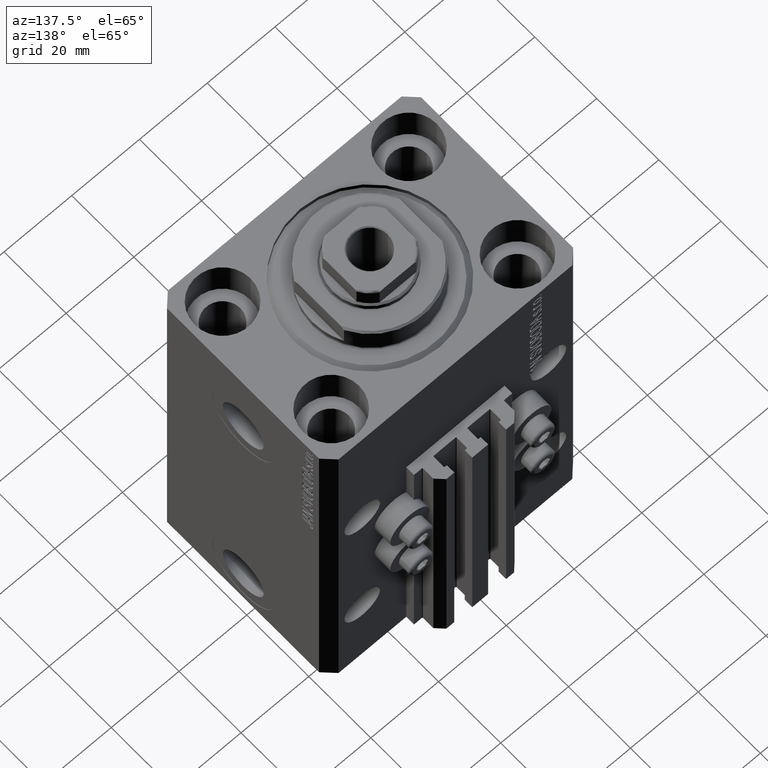
[diagram: clean part render]
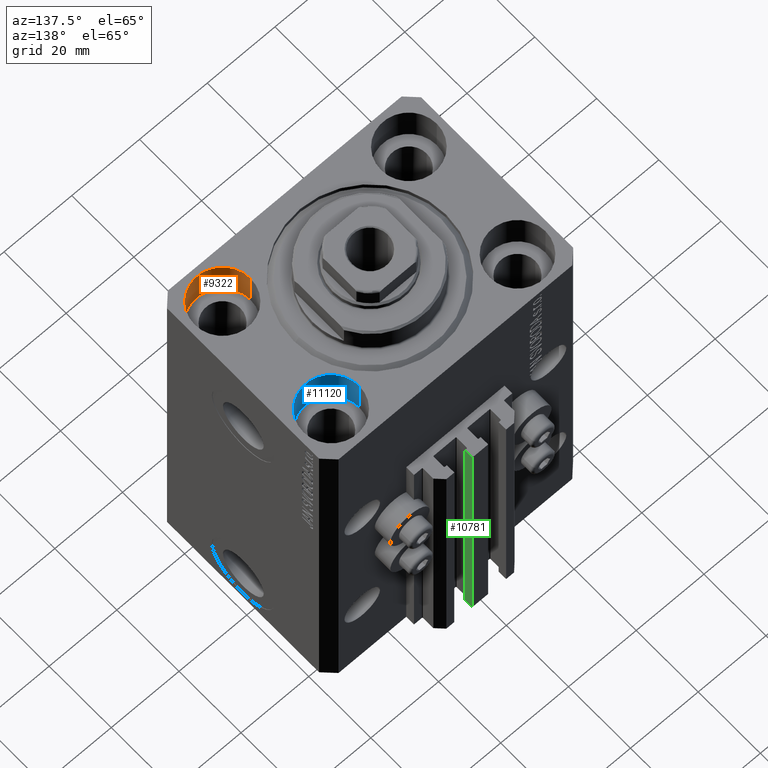
[diagram: same view with three faces highlighted in distinct colors, each labeled with its STEP entity id]
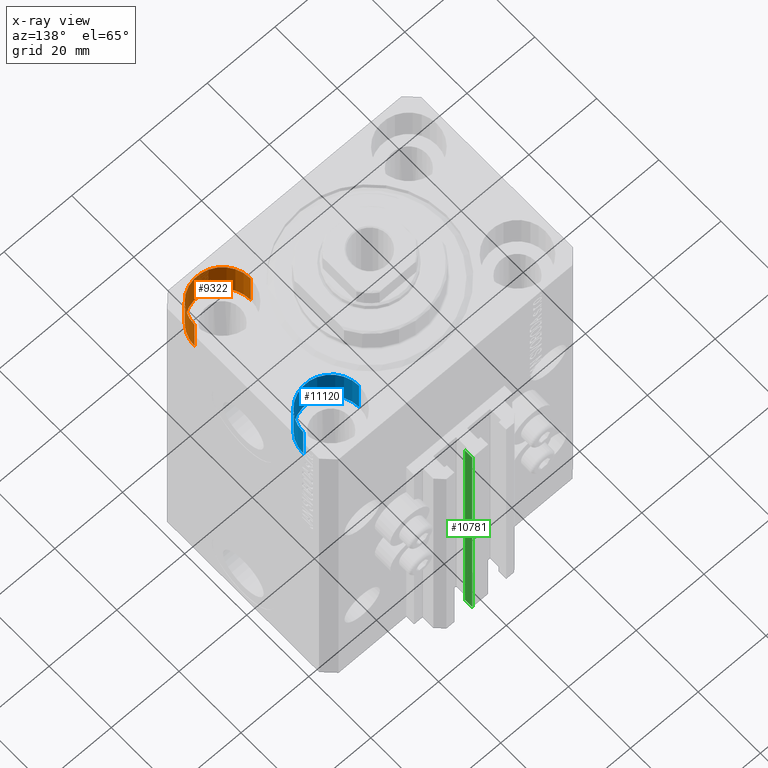
[diagram: x-ray of the same camera — body ghosted, the three highlighted faces saturated]
A machine part, auxiliary view with three faces highlighted in distinct colors.
The next image is the same camera in x-ray (body ghosted, the three faces saturated) — at least one of them is partly hidden behind the body in this view.
Their STEP definitions:

[orange] entity #9322 — the highlighted cylindrical surface (partial cylindrical patch) has radius 8.25 mm, axis along (0, 0, 1).
#1824 = LINE ( 'NONE', #31375, #22163 ) ;
#1887 = ORIENTED_EDGE ( 'NONE', *, *, #4318, .F. ) ;
#4318 = EDGE_CURVE ( 'NONE', #19138, #38455, #1824, .T. ) ;
#6321 = DIRECTION ( 'NONE',  ( 1.000000000000000000, 0.000000000000000000, 0.000000000000000000 ) ) ;
#9322 = ADVANCED_FACE ( 'NONE', ( #39497 ), #24252, .F. ) ;
#11263 = DIRECTION ( 'NONE',  ( 1.000000000000000000, 0.000000000000000000, 0.000000000000000000 ) ) ;
#11343 = ORIENTED_EDGE ( 'NONE', *, *, #13890, .F. ) ;
#12900 = VERTEX_POINT ( 'NONE', #22930 ) ;
#13705 = EDGE_CURVE ( 'NONE', #12900, #38455, #27004, .T. ) ;
#13789 = DIRECTION ( 'NONE',  ( -0.000000000000000000, -0.000000000000000000, 1.000000000000000000 ) ) ;
#13890 = EDGE_CURVE ( 'NONE', #32660, #19138, #32431, .T. ) ;
#17175 = LINE ( 'NONE', #20806, #33444 ) ;
#17768 = AXIS2_PLACEMENT_3D ( 'NONE', #21670, #36700, #11263 ) ;
#19138 = VERTEX_POINT ( 'NONE', #38774 ) ;
#20806 = CARTESIAN_POINT ( 'NONE',  ( 19.25000000000000000, -17.50000000000000000, -11.00000000000000000 ) ) ;
#21670 = CARTESIAN_POINT ( 'NONE',  ( 27.50000000000000355, -17.50000000000000000, -11.00000000000000000 ) ) ;
#22090 = CARTESIAN_POINT ( 'NONE',  ( 35.75000000000000711, -17.50000000000000000, 0.000000000000000000 ) ) ;
#22163 = VECTOR ( 'NONE', #24347, 1000.000000000000000 ) ;
#22842 = ORIENTED_EDGE ( 'NONE', *, *, #34866, .T. ) ;
#22930 = CARTESIAN_POINT ( 'NONE',  ( 19.25000000000000000, -17.50000000000000000, 0.000000000000000000 ) ) ;
#23301 = EDGE_LOOP ( 'NONE', ( #11343, #22842, #46595, #1887 ) ) ;
#24252 = CYLINDRICAL_SURFACE ( 'NONE', #35493, 8.250000000000000000 ) ;
#24347 = DIRECTION ( 'NONE',  ( -0.000000000000000000, -0.000000000000000000, 1.000000000000000000 ) ) ;
#26325 = DIRECTION ( 'NONE',  ( 0.000000000000000000, 0.000000000000000000, 1.000000000000000000 ) ) ;
#27004 = CIRCLE ( 'NONE', #33186, 8.250000000000000000 ) ;
#27289 = CARTESIAN_POINT ( 'NONE',  ( 19.25000000000000000, -17.50000000000000000, -11.00000000000000000 ) ) ;
#31375 = CARTESIAN_POINT ( 'NONE',  ( 35.75000000000000711, -17.50000000000000000, -11.00000000000000000 ) ) ;
#31747 = CARTESIAN_POINT ( 'NONE',  ( 27.50000000000000355, -17.50000000000000000, -11.00000000000000000 ) ) ;
#32431 = CIRCLE ( 'NONE', #17768, 8.250000000000000000 ) ;
#32660 = VERTEX_POINT ( 'NONE', #27289 ) ;
#33186 = AXIS2_PLACEMENT_3D ( 'NONE', #41349, #26325, #37002 ) ;
#33444 = VECTOR ( 'NONE', #13789, 1000.000000000000000 ) ;
#34866 = EDGE_CURVE ( 'NONE', #32660, #12900, #17175, .T. ) ;
#35493 = AXIS2_PLACEMENT_3D ( 'NONE', #31747, #38548, #6321 ) ;
#36700 = DIRECTION ( 'NONE',  ( 0.000000000000000000, 0.000000000000000000, 1.000000000000000000 ) ) ;
#37002 = DIRECTION ( 'NONE',  ( 1.000000000000000000, 0.000000000000000000, 0.000000000000000000 ) ) ;
#38455 = VERTEX_POINT ( 'NONE', #22090 ) ;
#38548 = DIRECTION ( 'NONE',  ( -0.000000000000000000, -0.000000000000000000, 1.000000000000000000 ) ) ;
#38774 = CARTESIAN_POINT ( 'NONE',  ( 35.75000000000000711, -17.50000000000000000, -11.00000000000000000 ) ) ;
#39497 = FACE_OUTER_BOUND ( 'NONE', #23301, .T. ) ;
#41349 = CARTESIAN_POINT ( 'NONE',  ( 27.50000000000000355, -17.50000000000000000, 0.000000000000000000 ) ) ;
#46595 = ORIENTED_EDGE ( 'NONE', *, *, #13705, .T. ) ;

[blue] entity #11120 — the highlighted cylindrical surface (partial cylindrical patch) has radius 8.25 mm, axis along (0, 0, 1).
#225 = CARTESIAN_POINT ( 'NONE',  ( 27.49999999999999645, 17.50000000000001066, 0.000000000000000000 ) ) ;
#381 = CARTESIAN_POINT ( 'NONE',  ( 19.25000000000000000, 17.50000000000001066, -11.00000000000000000 ) ) ;
#1952 = CARTESIAN_POINT ( 'NONE',  ( 35.74999999999999289, 17.50000000000001066, -11.00000000000000000 ) ) ;
#3028 = DIRECTION ( 'NONE',  ( -0.000000000000000000, -0.000000000000000000, 1.000000000000000000 ) ) ;
#3988 = EDGE_CURVE ( 'NONE', #28814, #44767, #18783, .T. ) ;
#6643 = CARTESIAN_POINT ( 'NONE',  ( 27.49999999999999645, 17.50000000000001066, -11.00000000000000000 ) ) ;
#6905 = CIRCLE ( 'NONE', #17706, 8.249999999999992895 ) ;
#6909 = CARTESIAN_POINT ( 'NONE',  ( 35.74999999999999289, 17.50000000000001066, -11.00000000000000000 ) ) ;
#7044 = CARTESIAN_POINT ( 'NONE',  ( 27.49999999999999645, 17.50000000000001066, -11.00000000000000000 ) ) ;
#9380 = EDGE_CURVE ( 'NONE', #28814, #45768, #6905, .T. ) ;
#11120 = ADVANCED_FACE ( 'NONE', ( #39805 ), #18238, .F. ) ;
#11671 = ORIENTED_EDGE ( 'NONE', *, *, #30011, .F. ) ;
#17690 = DIRECTION ( 'NONE',  ( 0.000000000000000000, 0.000000000000000000, 1.000000000000000000 ) ) ;
#17706 = AXIS2_PLACEMENT_3D ( 'NONE', #7044, #17690, #40703 ) ;
#17761 = DIRECTION ( 'NONE',  ( 1.000000000000000000, 0.000000000000000000, 0.000000000000000000 ) ) ;
#17788 = LINE ( 'NONE', #6909, #34431 ) ;
#18238 = CYLINDRICAL_SURFACE ( 'NONE', #37115, 8.249999999999992895 ) ;
#18783 = LINE ( 'NONE', #381, #35273 ) ;
#18786 = CARTESIAN_POINT ( 'NONE',  ( 19.25000000000000000, 17.50000000000001066, 0.000000000000000000 ) ) ;
#19006 = AXIS2_PLACEMENT_3D ( 'NONE', #225, #33173, #37063 ) ;
#19493 = ORIENTED_EDGE ( 'NONE', *, *, #9380, .F. ) ;
#19804 = CIRCLE ( 'NONE', #19006, 8.249999999999992895 ) ;
#20137 = VERTEX_POINT ( 'NONE', #32677 ) ;
#21946 = DIRECTION ( 'NONE',  ( -0.000000000000000000, -0.000000000000000000, 1.000000000000000000 ) ) ;
#26388 = ORIENTED_EDGE ( 'NONE', *, *, #3988, .T. ) ;
#26948 = ORIENTED_EDGE ( 'NONE', *, *, #31444, .T. ) ;
#27669 = EDGE_LOOP ( 'NONE', ( #19493, #26388, #26948, #11671 ) ) ;
#28499 = CARTESIAN_POINT ( 'NONE',  ( 19.25000000000000000, 17.50000000000001066, -11.00000000000000000 ) ) ;
#28814 = VERTEX_POINT ( 'NONE', #28499 ) ;
#30011 = EDGE_CURVE ( 'NONE', #45768, #20137, #17788, .T. ) ;
#31444 = EDGE_CURVE ( 'NONE', #44767, #20137, #19804, .T. ) ;
#32538 = DIRECTION ( 'NONE',  ( -0.000000000000000000, -0.000000000000000000, 1.000000000000000000 ) ) ;
#32677 = CARTESIAN_POINT ( 'NONE',  ( 35.74999999999999289, 17.50000000000001066, 0.000000000000000000 ) ) ;
#33173 = DIRECTION ( 'NONE',  ( 0.000000000000000000, 0.000000000000000000, 1.000000000000000000 ) ) ;
#34431 = VECTOR ( 'NONE', #3028, 1000.000000000000000 ) ;
#35273 = VECTOR ( 'NONE', #21946, 1000.000000000000000 ) ;
#37063 = DIRECTION ( 'NONE',  ( 1.000000000000000000, 0.000000000000000000, 0.000000000000000000 ) ) ;
#37115 = AXIS2_PLACEMENT_3D ( 'NONE', #6643, #32538, #17761 ) ;
#39805 = FACE_OUTER_BOUND ( 'NONE', #27669, .T. ) ;
#40703 = DIRECTION ( 'NONE',  ( 1.000000000000000000, 0.000000000000000000, 0.000000000000000000 ) ) ;
#44767 = VERTEX_POINT ( 'NONE', #18786 ) ;
#45768 = VERTEX_POINT ( 'NONE', #1952 ) ;

[green] entity #10781 — the highlighted planar face has unit normal (1, 0, 0).
#1326 = CARTESIAN_POINT ( 'NONE',  ( 2.349999999999999645, 33.10000000000000853, -33.00000000000000000 ) ) ;
#1832 = VECTOR ( 'NONE', #43736, 1000.000000000000000 ) ;
#2293 = VERTEX_POINT ( 'NONE', #38501 ) ;
#2518 = VECTOR ( 'NONE', #18851, 1000.000000000000000 ) ;
#4409 = LINE ( 'NONE', #18684, #24413 ) ;
#4959 = ORIENTED_EDGE ( 'NONE', *, *, #31147, .T. ) ;
#7170 = DIRECTION ( 'NONE',  ( 0.000000000000000000, 0.000000000000000000, -1.000000000000000000 ) ) ;
#7504 = LINE ( 'NONE', #44058, #2518 ) ;
#7655 = EDGE_CURVE ( 'NONE', #40242, #8974, #46759, .T. ) ;
#8301 = CARTESIAN_POINT ( 'NONE',  ( 2.349999999999999645, 35.50000000000001421, -110.0000000000000000 ) ) ;
#8974 = VERTEX_POINT ( 'NONE', #11735 ) ;
#9187 = VECTOR ( 'NONE', #43369, 1000.000000000000000 ) ;
#10573 = FACE_OUTER_BOUND ( 'NONE', #20222, .T. ) ;
#10781 = ADVANCED_FACE ( 'NONE', ( #10573 ), #36481, .T. ) ;
#11735 = CARTESIAN_POINT ( 'NONE',  ( 2.349999999999999645, 35.50000000000001421, -33.00000000000000000 ) ) ;
#13828 = CARTESIAN_POINT ( 'NONE',  ( 2.349999999999999645, 35.50000000000001421, -110.0000000000000000 ) ) ;
#14184 = CARTESIAN_POINT ( 'NONE',  ( 2.349999999999999645, 33.10000000000000853, -110.0000000000000000 ) ) ;
#14437 = DIRECTION ( 'NONE',  ( 1.000000000000000000, 0.000000000000000000, 0.000000000000000000 ) ) ;
#14704 = AXIS2_PLACEMENT_3D ( 'NONE', #47601, #14437, #7170 ) ;
#15301 = DIRECTION ( 'NONE',  ( 0.000000000000000000, 1.000000000000000000, 0.000000000000000000 ) ) ;
#18684 = CARTESIAN_POINT ( 'NONE',  ( 2.349999999999999645, 33.10000000000000853, -110.0000000000000000 ) ) ;
#18851 = DIRECTION ( 'NONE',  ( 0.000000000000000000, 1.000000000000000000, 0.000000000000000000 ) ) ;
#20222 = EDGE_LOOP ( 'NONE', ( #30101, #42388, #4959, #37139 ) ) ;
#20301 = EDGE_CURVE ( 'NONE', #32982, #8974, #7504, .T. ) ;
#24413 = VECTOR ( 'NONE', #15301, 1000.000000000000000 ) ;
#27115 = EDGE_CURVE ( 'NONE', #2293, #32982, #47357, .T. ) ;
#30101 = ORIENTED_EDGE ( 'NONE', *, *, #20301, .F. ) ;
#31147 = EDGE_CURVE ( 'NONE', #2293, #40242, #4409, .T. ) ;
#32982 = VERTEX_POINT ( 'NONE', #1326 ) ;
#36481 = PLANE ( 'NONE',  #14704 ) ;
#37139 = ORIENTED_EDGE ( 'NONE', *, *, #7655, .T. ) ;
#38501 = CARTESIAN_POINT ( 'NONE',  ( 2.349999999999999645, 33.10000000000000853, -110.0000000000000000 ) ) ;
#40242 = VERTEX_POINT ( 'NONE', #8301 ) ;
#42388 = ORIENTED_EDGE ( 'NONE', *, *, #27115, .F. ) ;
#43369 = DIRECTION ( 'NONE',  ( 0.000000000000000000, 0.000000000000000000, 1.000000000000000000 ) ) ;
#43736 = DIRECTION ( 'NONE',  ( 0.000000000000000000, 0.000000000000000000, 1.000000000000000000 ) ) ;
#44058 = CARTESIAN_POINT ( 'NONE',  ( 2.349999999999999645, 33.10000000000000853, -33.00000000000000000 ) ) ;
#46759 = LINE ( 'NONE', #13828, #9187 ) ;
#47357 = LINE ( 'NONE', #14184, #1832 ) ;
#47601 = CARTESIAN_POINT ( 'NONE',  ( 2.349999999999999645, 33.10000000000000853, -110.0000000000000000 ) ) ;